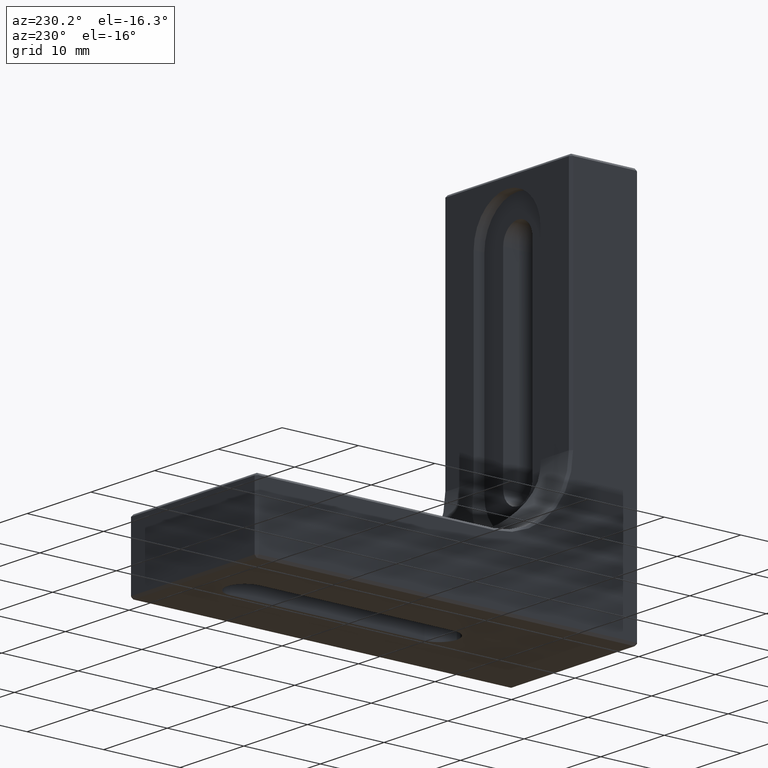
[diagram: clean part render]
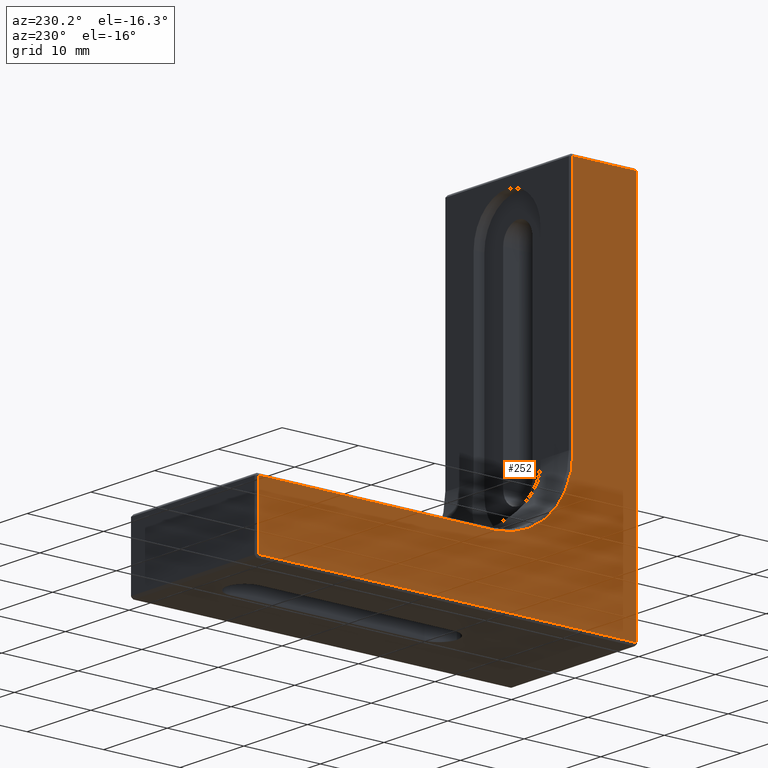
[diagram: same view with one face highlighted and labeled with its STEP entity id]
A machine part, auxiliary view. The second image highlights one B-rep face of the part: STEP entity #252.
In plain terms, the highlighted planar face has unit normal (1, 0, 0).
Its self-contained STEP definition (entity closure, byte-faithful):
#1 = DIRECTION ( 'NONE',  ( 0.000000000000000000, 0.000000000000000000, -1.000000000000000000 ) ) ;
#19 = LINE ( 'NONE', #315, #376 ) ;
#39 = CARTESIAN_POINT ( 'NONE',  ( -10.00000000000000000, 0.3000000000000016542, 3.673940397442079836E-17 ) ) ;
#46 = DIRECTION ( 'NONE',  ( 0.000000000000000000, -1.224646799147353207E-16, 1.000000000000000000 ) ) ;
#55 = VECTOR ( 'NONE', #1711, 1000.000000000000000 ) ;
#142 = PLANE ( 'NONE',  #1411 ) ;
#156 = LINE ( 'NONE', #716, #55 ) ;
#157 = CIRCLE ( 'NONE', #628, 10.30000000000000249 ) ;
#196 = CARTESIAN_POINT ( 'NONE',  ( -10.00000000000000000, 0.2999999999999956035, 49.70000000000000284 ) ) ;
#252 = ADVANCED_FACE ( 'NONE', ( #1131 ), #142, .F. ) ;
#261 = CARTESIAN_POINT ( 'NONE',  ( -10.00000000000000000, 49.70000000000000284, 8.599999999999997868 ) ) ;
#298 = VERTEX_POINT ( 'NONE', #1807 ) ;
#315 = CARTESIAN_POINT ( 'NONE',  ( -10.00000000000000000, 0.000000000000000000, 0.3000000000000017097 ) ) ;
#319 = VERTEX_POINT ( 'NONE', #261 ) ;
#353 = CARTESIAN_POINT ( 'NONE',  ( -10.00000000000000000, 8.599999999999992539, 49.70000000000000284 ) ) ;
#376 = VECTOR ( 'NONE', #1707, 1000.000000000000000 ) ;
#398 = EDGE_CURVE ( 'NONE', #549, #1174, #871, .T. ) ;
#415 = EDGE_CURVE ( 'NONE', #319, #298, #756, .T. ) ;
#434 = EDGE_CURVE ( 'NONE', #298, #549, #19, .T. ) ;
#499 = VECTOR ( 'NONE', #1198, 1000.000000000000000 ) ;
#508 = DIRECTION ( 'NONE',  ( 1.000000000000000000, 0.000000000000000000, 0.000000000000000000 ) ) ;
#519 = VECTOR ( 'NONE', #724, 1000.000000000000000 ) ;
#527 = EDGE_CURVE ( 'NONE', #1174, #608, #782, .T. ) ;
#549 = VERTEX_POINT ( 'NONE', #1805 ) ;
#608 = VERTEX_POINT ( 'NONE', #353 ) ;
#609 = CARTESIAN_POINT ( 'NONE',  ( -10.00000000000000000, 18.89999999999999858, 8.599999999999994316 ) ) ;
#628 = AXIS2_PLACEMENT_3D ( 'NONE', #783, #508, #1094 ) ;
#700 = VECTOR ( 'NONE', #46, 1000.000000000000000 ) ;
#716 = CARTESIAN_POINT ( 'NONE',  ( -10.00000000000000000, -1.088950503167921412E-15, 8.599999999999990763 ) ) ;
#720 = ORIENTED_EDGE ( 'NONE', *, *, #1720, .T. ) ;
#724 = DIRECTION ( 'NONE',  ( 0.000000000000000000, 0.000000000000000000, -1.000000000000000000 ) ) ;
#756 = LINE ( 'NONE', #890, #519 ) ;
#779 = VERTEX_POINT ( 'NONE', #609 ) ;
#782 = LINE ( 'NONE', #1769, #1369 ) ;
#783 = CARTESIAN_POINT ( 'NONE',  ( -10.00000000000000000, 18.89999999999999858, 18.89999999999999503 ) ) ;
#871 = LINE ( 'NONE', #39, #700 ) ;
#885 = LINE ( 'NONE', #1169, #499 ) ;
#890 = CARTESIAN_POINT ( 'NONE',  ( -10.00000000000000000, 49.70000000000000284, 0.000000000000000000 ) ) ;
#970 = DIRECTION ( 'NONE',  ( 1.000000000000000000, 0.000000000000000000, 0.000000000000000000 ) ) ;
#999 = CARTESIAN_POINT ( 'NONE',  ( -10.00000000000000000, 0.000000000000000000, 0.000000000000000000 ) ) ;
#1075 = ORIENTED_EDGE ( 'NONE', *, *, #398, .T. ) ;
#1094 = DIRECTION ( 'NONE',  ( 0.000000000000000000, 0.000000000000000000, -1.000000000000000000 ) ) ;
#1109 = DIRECTION ( 'NONE',  ( 0.000000000000000000, 1.000000000000000000, 0.000000000000000000 ) ) ;
#1122 = ORIENTED_EDGE ( 'NONE', *, *, #527, .T. ) ;
#1127 = EDGE_CURVE ( 'NONE', #779, #319, #156, .T. ) ;
#1131 = FACE_OUTER_BOUND ( 'NONE', #1760, .T. ) ;
#1169 = CARTESIAN_POINT ( 'NONE',  ( -10.00000000000000000, 8.599999999999997868, 1.088950503167922201E-15 ) ) ;
#1174 = VERTEX_POINT ( 'NONE', #196 ) ;
#1198 = DIRECTION ( 'NONE',  ( 0.000000000000000000, 1.266221515311537557E-16, -1.000000000000000000 ) ) ;
#1205 = EDGE_CURVE ( 'NONE', #608, #1582, #885, .T. ) ;
#1256 = ORIENTED_EDGE ( 'NONE', *, *, #415, .T. ) ;
#1299 = CARTESIAN_POINT ( 'NONE',  ( -10.00000000000000000, 8.599999999999996092, 18.89999999999999503 ) ) ;
#1369 = VECTOR ( 'NONE', #1109, 1000.000000000000000 ) ;
#1411 = AXIS2_PLACEMENT_3D ( 'NONE', #999, #970, #1 ) ;
#1492 = ORIENTED_EDGE ( 'NONE', *, *, #1205, .T. ) ;
#1582 = VERTEX_POINT ( 'NONE', #1299 ) ;
#1618 = ORIENTED_EDGE ( 'NONE', *, *, #434, .T. ) ;
#1707 = DIRECTION ( 'NONE',  ( 0.000000000000000000, -1.000000000000000000, 0.000000000000000000 ) ) ;
#1711 = DIRECTION ( 'NONE',  ( 0.000000000000000000, 1.000000000000000000, 1.266221515311537804E-16 ) ) ;
#1720 = EDGE_CURVE ( 'NONE', #1582, #779, #157, .T. ) ;
#1734 = ORIENTED_EDGE ( 'NONE', *, *, #1127, .T. ) ;
#1760 = EDGE_LOOP ( 'NONE', ( #1256, #1618, #1075, #1122, #1492, #720, #1734 ) ) ;
#1769 = CARTESIAN_POINT ( 'NONE',  ( -10.00000000000000000, 0.000000000000000000, 49.70000000000000284 ) ) ;
#1805 = CARTESIAN_POINT ( 'NONE',  ( -10.00000000000000000, 0.3000000000000015987, 0.3000000000000017097 ) ) ;
#1807 = CARTESIAN_POINT ( 'NONE',  ( -10.00000000000000000, 49.70000000000000284, 0.3000000000000017097 ) ) ;